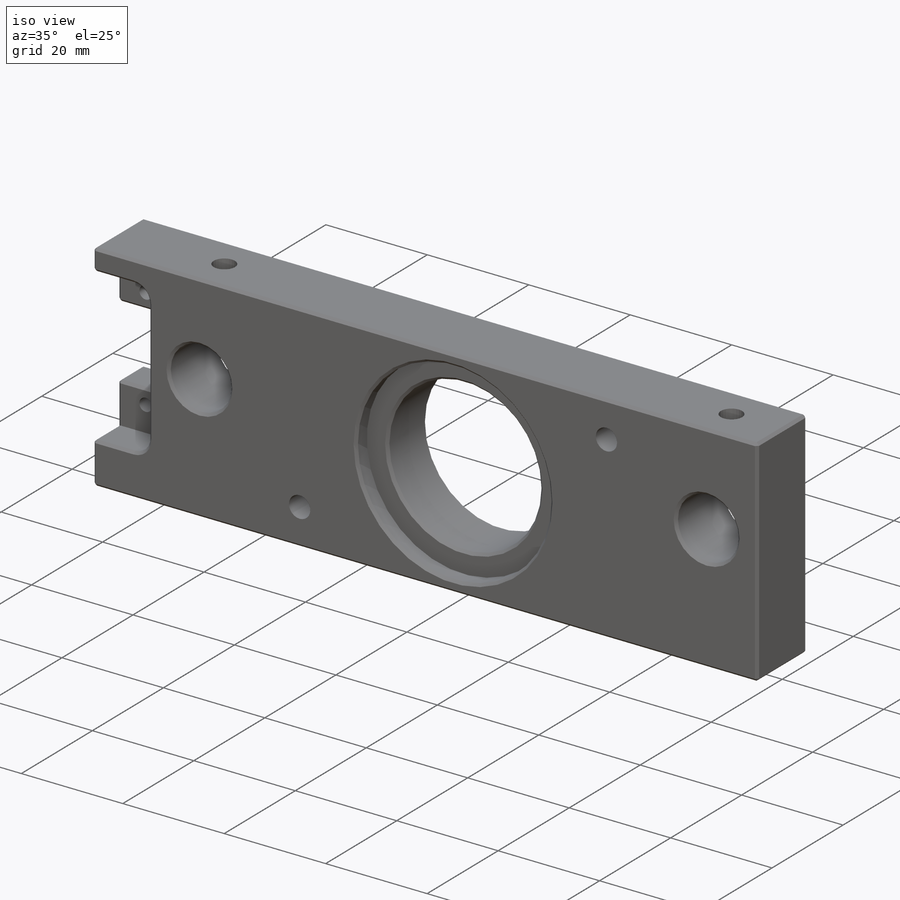
[diagram: iso view]
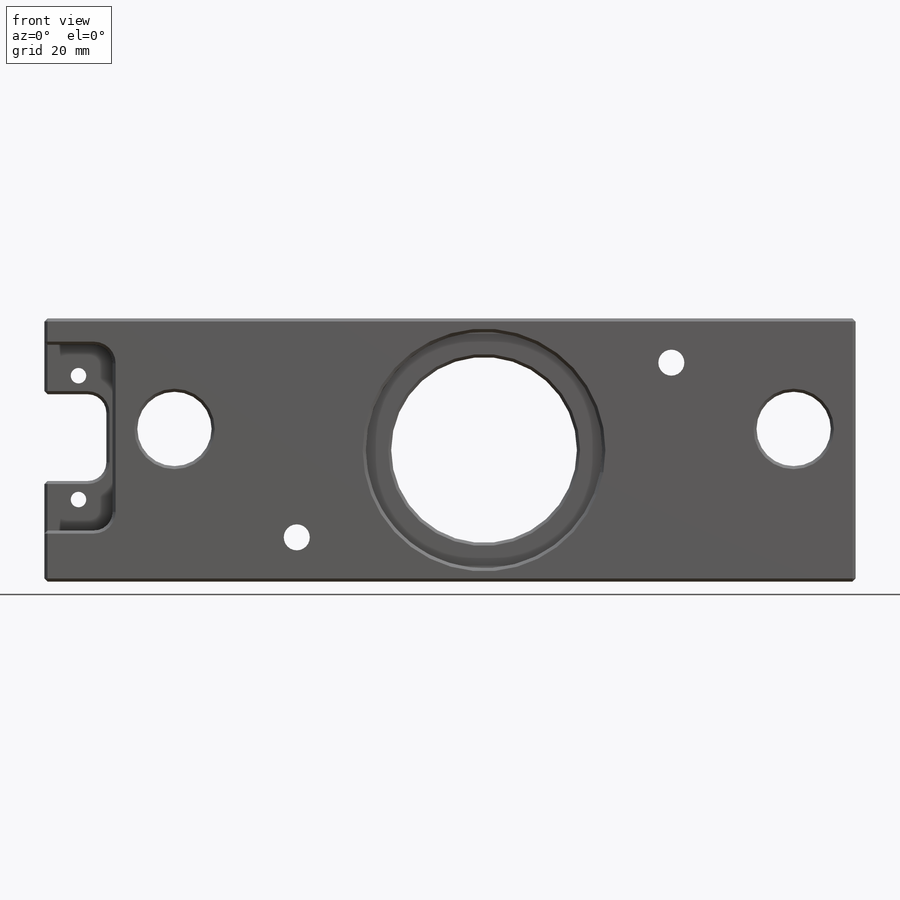
[diagram: front view]
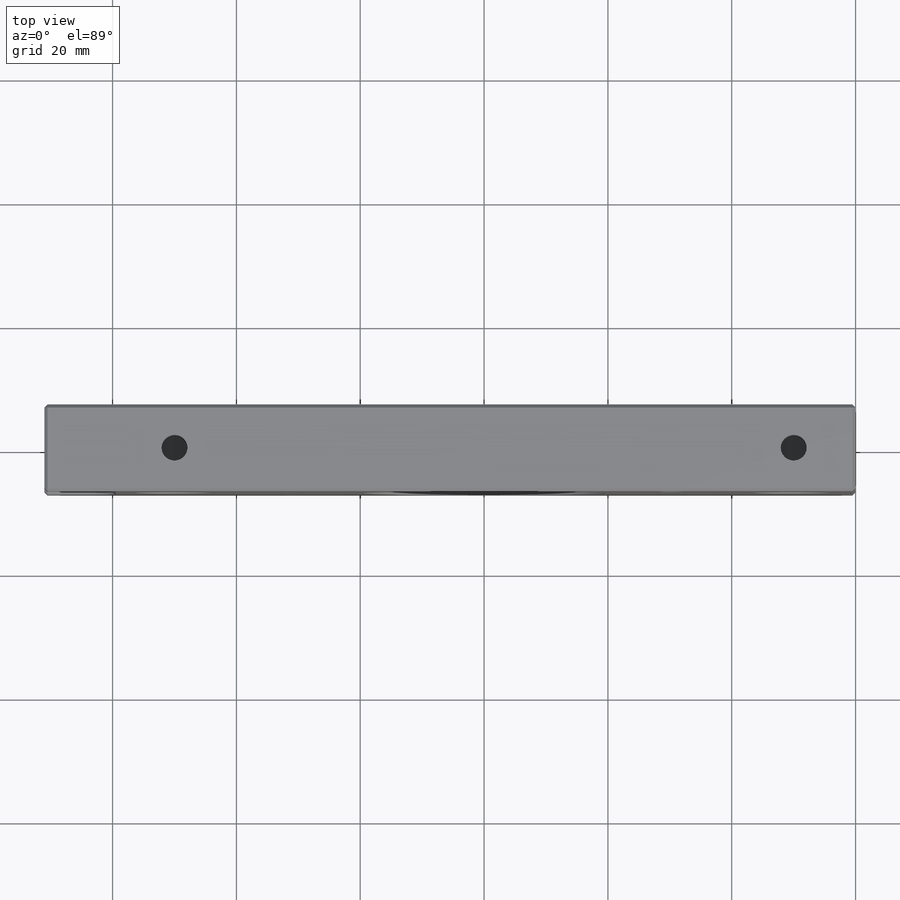
[diagram: top view]
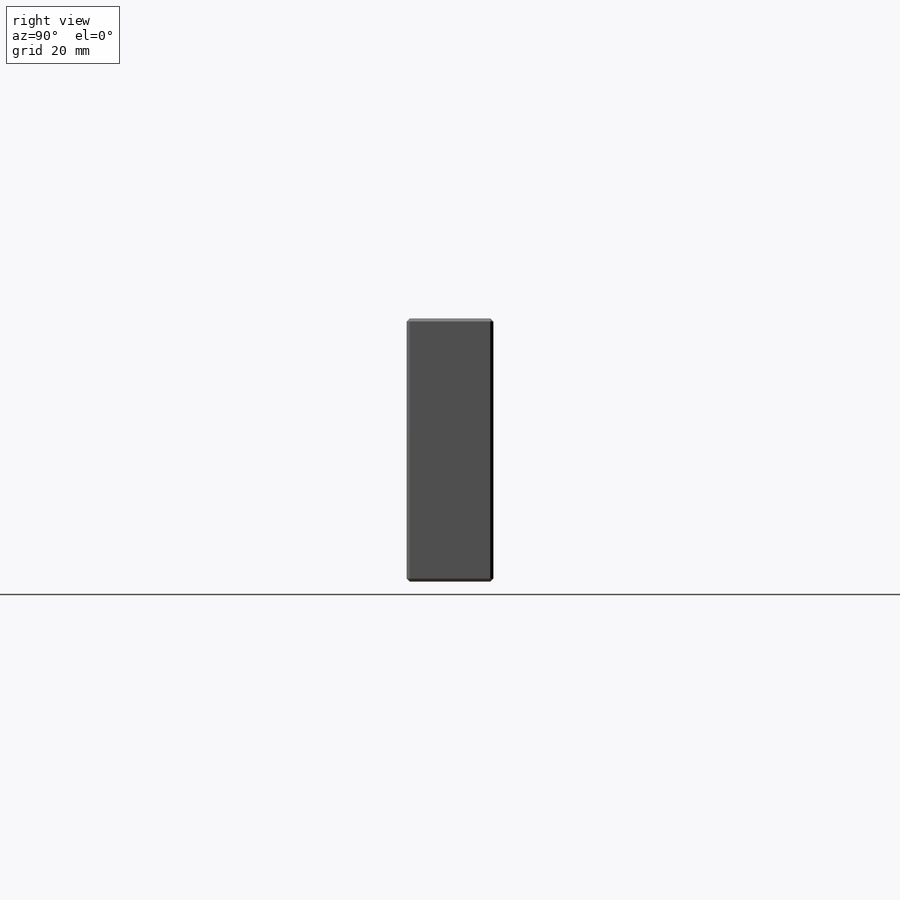
[diagram: right view]
SOLIDWORKS PART (.sldprt)
format: sldprt  version: not decoded by parser v0  size: 584,192 bytes
history: native  units: mm
features: sketch x18, thread x10, cut_extrude x6, hole x5, extrude x2, material x1, mirror x1, fillet x1, chamfer x1 (+12 scaffold rows collapsed)
feature tree (57):
  scaffold x12  (default folders/planes/origin — collapsed)
  material  "Material <not specified>"
  sketch  "Sketch1"  dims[D1=120.0mm D2=42.5mm]
  extrude  "Boss-Extrude1"  Depth=14mm
  sketch  "Sketch2"  dims[D1=38.2mm]
  cut_extrude  "Cut-Extrude1"  Depth=3mm
  sketch  "Sketch3"  dims[D1=~13.928455mm]
  cut_extrude  "Cut-Extrude2"  [1 undecoded]
  hole  "M5x0.8 Tapped Hole3"  Diameter=4.2mm Depth=14mm
  sketch  "Sketch13"  dims[c1.D3=66.75mm c1.D1=33.375mm c1.D2=33.375mm c1.D4=95.0deg c2.D1=25.0deg]
  sketch  "Sketch12"  dims[hole-wizard template sketch: 50 standard entries collapsed; hole parameters above]
  thread  "Hole Thread6"  Diameter=10mm  [1 undecoded]
  thread  "Hole Thread7"  Diameter=10mm  [1 undecoded]
  sketch  "Sketch5"  dims[c1.D1=12.0mm c1.D2=12.0mm c1.D4=12.0mm c1.D3=50.0mm c2.D4=50.0mm c2.D5=3.4mm]
  cut_extrude  "Cut-Extrude4"  [1 undecoded]
  hole  "M5x0.8 Tapped Hole2"  Diameter=4.2mm Depth=14mm
  sketch  "Sketch11"  dims[c1.D1=10.0mm c1.D2=38.0mm c2.D1=22.0mm c2.D2=50.0mm]
  sketch  "Sketch10"  dims[hole-wizard template sketch: 50 standard entries collapsed; hole parameters above]
  thread  "Hole Thread3"  Diameter=10mm  [1 undecoded]
  thread  "Hole Thread5"  Diameter=10mm  [1 undecoded]
  sketch  "Sketch6"  dims[c1.D1=4.2mm c1.D2=4.2mm c1.D3=4.2mm c1.D4=4.2mm c1.D5=5.0mm c1.D9=2.5mm c1.D10=2.5mm c1.D11=2.5mm c1.D12=2.5mm c2.D5=10.0mm c2.D6=35.0mm c2.D7=10.0mm c2.D8=35.0mm c2.D11=24.0mm c2.D12=22.5mm]
  cut_extrude  "Cut-Extrude5"  Depth=10mm
  mirror  "Mirror1"
  hole  "M5x0.8 Tapped Hole1"  Diameter=4.2mm Depth=11.85mm
  sketch  "Sketch9"  dims[D1=10.0mm D2=10.0mm]
  sketch  "Sketch8"  dims[hole-wizard template sketch: 60 standard entries collapsed; hole parameters kept: c18.Thru Tap Drill Depth=11.85mm]
  thread  "Hole Thread1"  Diameter=5mm  [1 undecoded]
  thread  "Hole Thread2"  Diameter=5mm  [1 undecoded]
  sketch  "Sketch16"
  extrude  "Boss-Extrude2"  Depth=11mm
  hole  "M2x0.4 Tapped Hole1"  Diameter=1.6mm Depth=6mm
  sketch  "Sketch15"  dims[D1=40.0mm D2=33.5mm]
  sketch  "Sketch14"  dims[hole-wizard template sketch: 50 standard entries collapsed; hole parameters above]
  thread  "Hole Thread8"  Diameter=4mm  [1 undecoded]
  thread  "Hole Thread9"  Diameter=4mm  [1 undecoded]
  sketch  "Sketch17"  dims[D1=30.0mm D2=11.0mm D3=17.0mm]
  cut_extrude  "Cut-Extrude6"  Depth=7mm
  hole  "M3x0.5 Tapped Hole1"  [1 undecoded]
  sketch  "Sketch20"  dims[c1.D1=10.0mm c1.D2=20.0mm c1.D3=5.5mm c2.D1=5.0mm]
  thread  "Hole Thread10"  Diameter=3mm  [1 undecoded]
  thread  "Hole Thread11"  Diameter=3mm  [1 undecoded]
  sketch  "Sketch19"  dims[hole-wizard template sketch: 60 standard entries collapsed; hole parameters kept: c18.Thru Tap Drill Depth=7.0mm]
  sketch  "Sketch21"  dims[c1.D1=14.0mm c1.D2=7.0mm c1.D3=10.0mm c2.D2=7.0mm]
  cut_extrude  "Cut-Extrude7"  [1 undecoded]
  fillet  "Fillet1"  Radius=3mm
  chamfer  "Chamfer1"  Distance=0.5mm Angle=45deg
decode coverage: 38 of 44 modeling features carry decoded parameters
note: ~ marks probable driven/reference dimensions
note: 14 parameter values undecoded
summary: no parameter record found for 4 features; Diameter pulled from absorbed wizard sketch
note: suppression state not decoded; provenance and decode notes live in map.json
